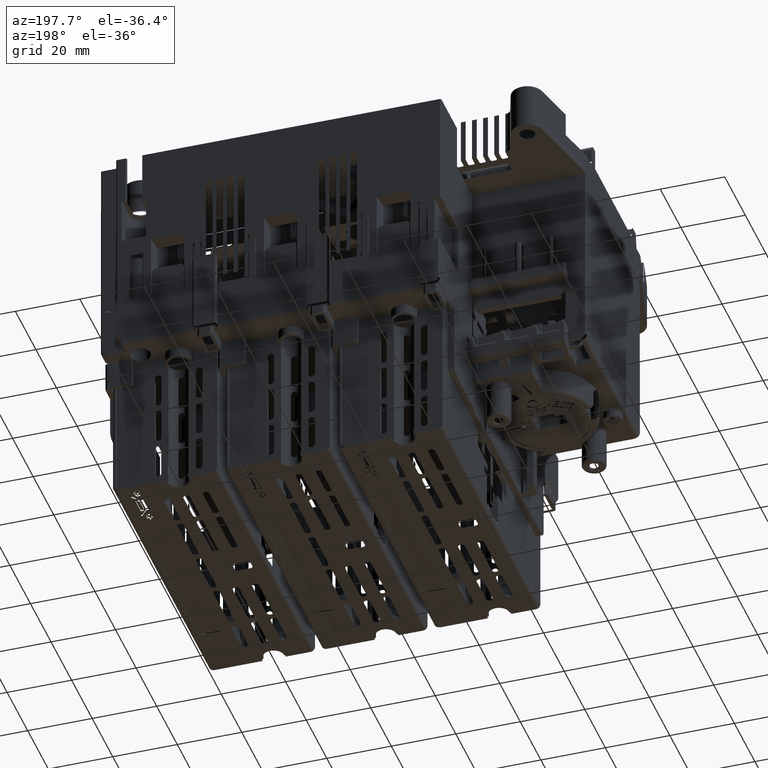
[diagram: clean part render]
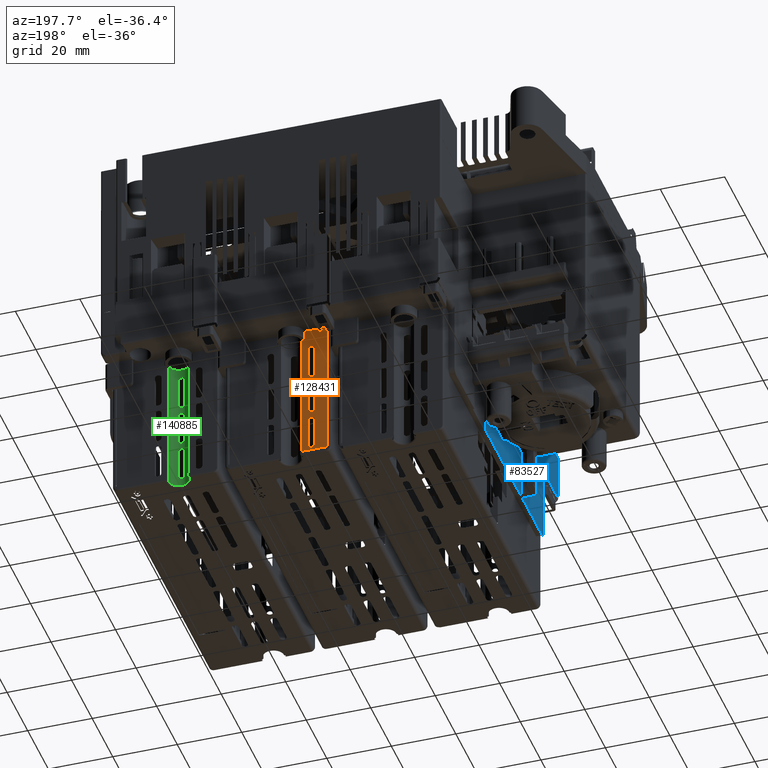
[diagram: same view with three faces highlighted in distinct colors, each labeled with its STEP entity id]
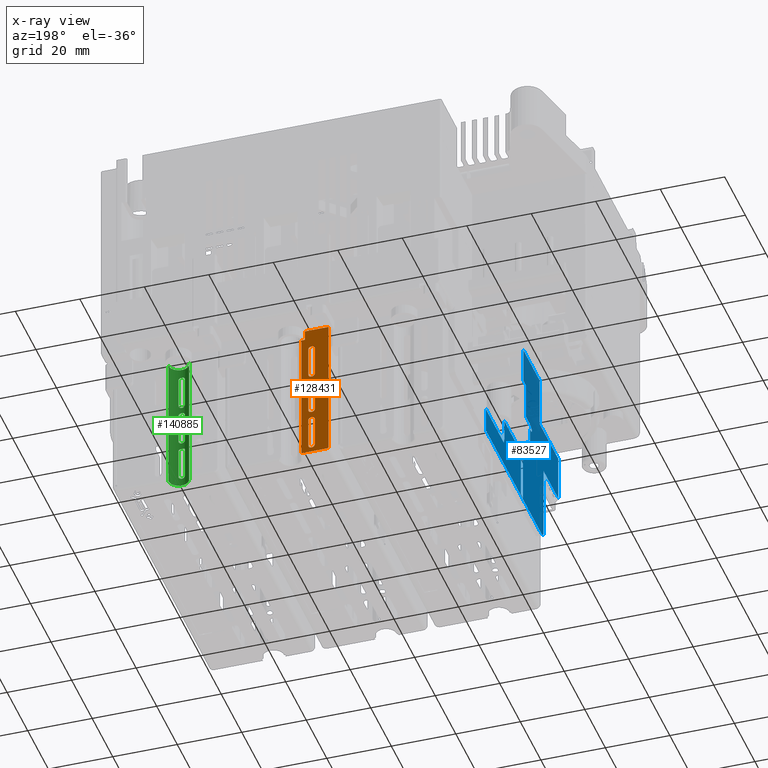
[diagram: x-ray of the same camera — body ghosted, the three highlighted faces saturated]
A machine part, auxiliary view with three faces highlighted in distinct colors.
The next image is the same camera in x-ray (body ghosted, the three faces saturated) — at least one of them is partly hidden behind the body in this view.
Their STEP definitions:

[orange] entity #128431 — the highlighted planar face has unit normal (0, 1, 0).
#122798=DIRECTION('',(1.E0,0.E0,0.E0));
#122799=VECTOR('',#122798,7.999999999987E0);
#122800=CARTESIAN_POINT('',(1.549967156548E2,4.608298711181E2,
7.999609065454E1));
#122801=LINE('',#122800,#122799);
#122802=DIRECTION('',(0.E0,0.E0,1.E0));
#122803=VECTOR('',#122802,4.139999999996E1);
#122804=CARTESIAN_POINT('',(1.629967156548E2,4.608298711181E2,
7.999609065454E1));
#122805=LINE('',#122804,#122803);
#122806=DIRECTION('',(-1.E0,0.E0,0.E0));
#122807=VECTOR('',#122806,1.149058728145E0);
#122808=CARTESIAN_POINT('',(1.629967156548E2,4.608298711181E2,
1.213960906545E2));
#122809=LINE('',#122808,#122807);
#122810=DIRECTION('',(0.E0,0.E0,1.E0));
#122811=VECTOR('',#122810,3.1E0);
#122812=CARTESIAN_POINT('',(1.618476569267E2,4.608298711181E2,
1.213960906545E2));
#122813=LINE('',#122812,#122811);
#122814=DIRECTION('',(-1.E0,0.E0,0.E0));
#122815=VECTOR('',#122814,7.350941271855E0);
#122816=CARTESIAN_POINT('',(1.618476569267E2,4.608298711181E2,
1.244960906545E2));
#122817=LINE('',#122816,#122815);
#122818=CARTESIAN_POINT('',(1.544967156548E2,4.608298711181E2,
8.049609065453E1));
#122819=CARTESIAN_POINT('',(1.544980950969E2,4.608298711181E2,
8.042646805879E1));
#122820=CARTESIAN_POINT('',(1.545231996105E2,4.608298711181E2,
8.029899881479E1));
#122821=CARTESIAN_POINT('',(1.546340490443E2,4.608298711181E2,
8.013342404407E1));
#122822=CARTESIAN_POINT('',(1.547996238150E2,4.608298711181E2,
8.002257461029E1));
#122823=CARTESIAN_POINT('',(1.549270930590E2,4.608298711181E2,
7.999747009669E1));
#122824=CARTESIAN_POINT('',(1.549967156548E2,4.608298711181E2,
7.999609065454E1));
#122826=CARTESIAN_POINT('',(1.587967156547E2,4.608298711181E2,
9.159609065408E1));
#122827=CARTESIAN_POINT('',(1.587991986506E2,4.608298711181E2,
9.172141132667E1));
#122828=CARTESIAN_POINT('',(1.588443867752E2,4.608298711181E2,
9.195085596621E1));
#122829=CARTESIAN_POINT('',(1.590439157559E2,4.608298711181E2,
9.224889055336E1));
#122830=CARTESIAN_POINT('',(1.593419503432E2,4.608298711181E2,
9.244841953421E1));
#122831=CARTESIAN_POINT('',(1.595713949825E2,4.608298711181E2,
9.249360765867E1));
#122832=CARTESIAN_POINT('',(1.596967156548E2,4.608298711181E2,
9.249609065454E1));
#122834=DIRECTION('',(1.E0,0.E0,0.E0));
#122835=VECTOR('',#122834,1.999999998716E-1);
#122836=CARTESIAN_POINT('',(1.596967156548E2,4.608298711181E2,
9.249609065454E1));
#122837=LINE('',#122836,#122835);
#122838=CARTESIAN_POINT('',(1.598967156547E2,4.608298711181E2,
9.249609065454E1));
#122839=CARTESIAN_POINT('',(1.600220363271E2,4.608298711181E2,
9.249360765867E1));
#122840=CARTESIAN_POINT('',(1.602514809663E2,4.608298711181E2,
9.244841953420E1));
#122841=CARTESIAN_POINT('',(1.605495155535E2,4.608298711181E2,
9.224889055339E1));
#122842=CARTESIAN_POINT('',(1.607490445344E2,4.608298711181E2,
9.195085596611E1));
#122843=CARTESIAN_POINT('',(1.607942326588E2,4.608298711181E2,
9.172141132689E1));
#122844=CARTESIAN_POINT('',(1.607967156547E2,4.608298711181E2,
9.159609065453E1));
#122846=DIRECTION('',(0.E0,0.E0,-1.E0));
#122847=VECTOR('',#122846,9.200000000460E0);
#122848=CARTESIAN_POINT('',(1.607967156547E2,4.608298711181E2,
9.159609065453E1));
#122849=LINE('',#122848,#122847);
#122850=CARTESIAN_POINT('',(1.607967156547E2,4.608298711181E2,
8.239609065407E1));
#122851=CARTESIAN_POINT('',(1.607942326589E2,4.608298711181E2,
8.227076998196E1));
#122852=CARTESIAN_POINT('',(1.607490445345E2,4.608298711181E2,
8.204132534310E1));
#122853=CARTESIAN_POINT('',(1.605495155536E2,4.608298711181E2,
8.174329075567E1));
#122854=CARTESIAN_POINT('',(1.602514809664E2,4.608298711181E2,
8.154376177490E1));
#122855=CARTESIAN_POINT('',(1.600220363272E2,4.608298711181E2,
8.149857365041E1));
#122856=CARTESIAN_POINT('',(1.598967156548E2,4.608298711181E2,
8.149609065454E1));
#122858=DIRECTION('',(-1.E0,0.E0,0.E0));
#122859=VECTOR('',#122858,2.000000001036E-1);
#122860=CARTESIAN_POINT('',(1.598967156548E2,4.608298711181E2,
8.149609065454E1));
#122861=LINE('',#122860,#122859);
#122862=CARTESIAN_POINT('',(1.596967156547E2,4.608298711181E2,
8.149609065454E1));
#122863=CARTESIAN_POINT('',(1.595713949823E2,4.608298711181E2,
8.149857365041E1));
#122864=CARTESIAN_POINT('',(1.593419503431E2,4.608298711181E2,
8.154376177488E1));
#122865=CARTESIAN_POINT('',(1.590439157558E2,4.608298711181E2,
8.174329075569E1));
#122866=CARTESIAN_POINT('',(1.588443867750E2,4.608298711181E2,
8.204132534298E1));
#122867=CARTESIAN_POINT('',(1.587991986506E2,4.608298711181E2,
8.227076998218E1));
#122868=CARTESIAN_POINT('',(1.587967156547E2,4.608298711181E2,
8.239609065453E1));
#122870=DIRECTION('',(0.E0,0.E0,1.E0));
#122871=VECTOR('',#122870,9.199999999544E0);
#122872=CARTESIAN_POINT('',(1.587967156547E2,4.608298711181E2,
8.239609065453E1));
#122873=LINE('',#122872,#122871);
#122874=CARTESIAN_POINT('',(1.587967156548E2,4.608298711181E2,
1.045960906545E2));
#122875=CARTESIAN_POINT('',(1.587991986507E2,4.608298711181E2,
1.047214113269E2));
#122876=CARTESIAN_POINT('',(1.588443867751E2,4.608298711181E2,
1.049508559661E2));
#122877=CARTESIAN_POINT('',(1.590439157560E2,4.608298711181E2,
1.052488905533E2));
#122878=CARTESIAN_POINT('',(1.593419503432E2,4.608298711181E2,
1.054484195342E2));
#122879=CARTESIAN_POINT('',(1.595713949824E2,4.608298711181E2,
1.054936076586E2));
#122880=CARTESIAN_POINT('',(1.596967156548E2,4.608298711181E2,
1.054960906545E2));
#122882=DIRECTION('',(1.E0,0.E0,0.E0));
#122883=VECTOR('',#122882,1.999999999781E-1);
#122884=CARTESIAN_POINT('',(1.596967156548E2,4.608298711181E2,
1.054960906545E2));
#122885=LINE('',#122884,#122883);
#122886=CARTESIAN_POINT('',(1.598967156548E2,4.608298711181E2,
1.054960906545E2));
#122887=CARTESIAN_POINT('',(1.600220363271E2,4.608298711181E2,
1.054936076586E2));
#122888=CARTESIAN_POINT('',(1.602514809664E2,4.608298711181E2,
1.054484195342E2));
#122889=CARTESIAN_POINT('',(1.605495155536E2,4.608298711181E2,
1.052488905533E2));
#122890=CARTESIAN_POINT('',(1.607490445345E2,4.608298711181E2,
1.049508559661E2));
#122891=CARTESIAN_POINT('',(1.607942326589E2,4.608298711181E2,
1.047214113269E2));
#122892=CARTESIAN_POINT('',(1.607967156548E2,4.608298711181E2,
1.045960906545E2));
#122894=DIRECTION('',(0.E0,0.E0,-1.E0));
#122895=VECTOR('',#122894,9.199999991301E0);
#122896=CARTESIAN_POINT('',(1.607967156548E2,4.608298711181E2,
1.045960906545E2));
#122897=LINE('',#122896,#122895);
#122898=CARTESIAN_POINT('',(1.607967156548E2,4.608298711181E2,
9.539609066320E1));
#122899=CARTESIAN_POINT('',(1.607942326601E2,4.608298711181E2,
9.527076999082E1));
#122900=CARTESIAN_POINT('',(1.607490445379E2,4.608298711181E2,
9.504132535117E1));
#122901=CARTESIAN_POINT('',(1.605495155599E2,4.608298711181E2,
9.474329076197E1));
#122902=CARTESIAN_POINT('',(1.602514809746E2,4.608298711181E2,
9.454376177829E1));
#122903=CARTESIAN_POINT('',(1.600220363358E2,4.608298711181E2,
9.449857365160E1));
#122904=CARTESIAN_POINT('',(1.598967156634E2,4.608298711181E2,
9.449609065453E1));
#122906=DIRECTION('',(-1.E0,0.E0,0.E0));
#122907=VECTOR('',#122906,2.000000086248E-1);
#122908=CARTESIAN_POINT('',(1.598967156634E2,4.608298711181E2,
9.449609065453E1));
#122909=LINE('',#122908,#122907);
#122910=CARTESIAN_POINT('',(1.596967156548E2,4.608298711181E2,
9.449609065453E1));
#122911=CARTESIAN_POINT('',(1.595713949825E2,4.608298711181E2,
9.449857365040E1));
#122912=CARTESIAN_POINT('',(1.593419503432E2,4.608298711181E2,
9.454376177487E1));
#122913=CARTESIAN_POINT('',(1.590439157560E2,4.608298711181E2,
9.474329075568E1));
#122914=CARTESIAN_POINT('',(1.588443867751E2,4.608298711181E2,
9.504132534296E1));
#122915=CARTESIAN_POINT('',(1.587991986507E2,4.608298711181E2,
9.527076998218E1));
#122916=CARTESIAN_POINT('',(1.587967156548E2,4.608298711181E2,
9.539609065454E1));
#122918=DIRECTION('',(0.E0,0.E0,1.E0));
#122919=VECTOR('',#122918,9.199999999950E0);
#122920=CARTESIAN_POINT('',(1.587967156548E2,4.608298711181E2,
9.539609065454E1));
#122921=LINE('',#122920,#122919);
#122922=CARTESIAN_POINT('',(1.587967156548E2,4.608298711181E2,
1.175960906545E2));
#122923=CARTESIAN_POINT('',(1.587991986507E2,4.608298711181E2,
1.177214113269E2));
#122924=CARTESIAN_POINT('',(1.588443867751E2,4.608298711181E2,
1.179508559661E2));
#122925=CARTESIAN_POINT('',(1.590439157560E2,4.608298711181E2,
1.182488905534E2));
#122926=CARTESIAN_POINT('',(1.593419503432E2,4.608298711181E2,
1.184484195342E2));
#122927=CARTESIAN_POINT('',(1.595713949824E2,4.608298711181E2,
1.184936076586E2));
#122928=CARTESIAN_POINT('',(1.596967156548E2,4.608298711181E2,
1.184960906545E2));
#122930=DIRECTION('',(1.E0,0.E0,0.E0));
#122931=VECTOR('',#122930,1.999999999989E-1);
#122932=CARTESIAN_POINT('',(1.596967156548E2,4.608298711181E2,
1.184960906545E2));
#122933=LINE('',#122932,#122931);
#122934=CARTESIAN_POINT('',(1.598967156548E2,4.608298711181E2,
1.184960906545E2));
#122935=CARTESIAN_POINT('',(1.600220363271E2,4.608298711181E2,
1.184936076586E2));
#122936=CARTESIAN_POINT('',(1.602514809664E2,4.608298711181E2,
1.184484195342E2));
#122937=CARTESIAN_POINT('',(1.605495155536E2,4.608298711181E2,
1.182488905533E2));
#122938=CARTESIAN_POINT('',(1.607490445345E2,4.608298711181E2,
1.179508559661E2));
#122939=CARTESIAN_POINT('',(1.607942326589E2,4.608298711181E2,
1.177214113269E2));
#122940=CARTESIAN_POINT('',(1.607967156548E2,4.608298711181E2,
1.175960906545E2));
#122942=DIRECTION('',(0.E0,0.E0,-1.E0));
#122943=VECTOR('',#122942,9.199999991321E0);
#122944=CARTESIAN_POINT('',(1.607967156548E2,4.608298711181E2,
1.175960906545E2));
#122945=LINE('',#122944,#122943);
#122946=CARTESIAN_POINT('',(1.607967156548E2,4.608298711181E2,
1.083960906632E2));
#122947=CARTESIAN_POINT('',(1.607942326601E2,4.608298711181E2,
1.082707699908E2));
#122948=CARTESIAN_POINT('',(1.607490445379E2,4.608298711181E2,
1.080413253511E2));
#122949=CARTESIAN_POINT('',(1.605495155599E2,4.608298711181E2,
1.077432907619E2));
#122950=CARTESIAN_POINT('',(1.602514809746E2,4.608298711181E2,
1.075437617783E2));
#122951=CARTESIAN_POINT('',(1.600220363358E2,4.608298711181E2,
1.074985736516E2));
#122952=CARTESIAN_POINT('',(1.598967156635E2,4.608298711181E2,
1.074960906545E2));
#122954=DIRECTION('',(-1.E0,0.E0,0.E0));
#122955=VECTOR('',#122954,2.000000086710E-1);
#122956=CARTESIAN_POINT('',(1.598967156635E2,4.608298711181E2,
1.074960906545E2));
#122957=LINE('',#122956,#122955);
#122958=CARTESIAN_POINT('',(1.596967156548E2,4.608298711181E2,
1.074960906545E2));
#122959=CARTESIAN_POINT('',(1.595713949824E2,4.608298711181E2,
1.074985736504E2));
#122960=CARTESIAN_POINT('',(1.593419503432E2,4.608298711181E2,
1.075437617748E2));
#122961=CARTESIAN_POINT('',(1.590439157560E2,4.608298711181E2,
1.077432907557E2));
#122962=CARTESIAN_POINT('',(1.588443867751E2,4.608298711181E2,
1.080413253429E2));
#122963=CARTESIAN_POINT('',(1.587991986507E2,4.608298711181E2,
1.082707699821E2));
#122964=CARTESIAN_POINT('',(1.587967156548E2,4.608298711181E2,
1.083960906545E2));
#122966=DIRECTION('',(0.E0,0.E0,1.E0));
#122967=VECTOR('',#122966,9.200000000037E0);
#122968=CARTESIAN_POINT('',(1.587967156548E2,4.608298711181E2,
1.083960906545E2));
#122969=LINE('',#122968,#122967);
#122970=DIRECTION('',(0.E0,0.E0,1.E0));
#122971=VECTOR('',#122970,4.399999999997E1);
#122972=CARTESIAN_POINT('',(1.544967156548E2,4.608298711181E2,
8.049609065453E1));
#122973=LINE('',#122972,#122971);
#124577=CARTESIAN_POINT('',(1.549967156548E2,4.608298711181E2,
7.999609065454E1));
#124579=VERTEX_POINT('',#124577);
#124582=CARTESIAN_POINT('',(1.629967156548E2,4.608298711181E2,
7.999609065454E1));
#124584=VERTEX_POINT('',#124582);
#124585=CARTESIAN_POINT('',(1.629967156548E2,4.608298711181E2,
1.213960906545E2));
#124586=VERTEX_POINT('',#124585);
#124587=CARTESIAN_POINT('',(1.618476569267E2,4.608298711181E2,
1.213960906545E2));
#124588=VERTEX_POINT('',#124587);
#124589=CARTESIAN_POINT('',(1.618476569267E2,4.608298711181E2,
1.244960906545E2));
#124590=VERTEX_POINT('',#124589);
#124591=CARTESIAN_POINT('',(1.544967156548E2,4.608298711181E2,
1.244960906545E2));
#124592=VERTEX_POINT('',#124591);
#124593=VERTEX_POINT('',#122818);
#124594=VERTEX_POINT('',#122826);
#124595=VERTEX_POINT('',#122832);
#124596=CARTESIAN_POINT('',(1.598967156547E2,4.608298711181E2,
9.249609065454E1));
#124597=VERTEX_POINT('',#124596);
#124598=VERTEX_POINT('',#122844);
#124599=CARTESIAN_POINT('',(1.607967156547E2,4.608298711181E2,
8.239609065407E1));
#124600=VERTEX_POINT('',#124599);
#124601=VERTEX_POINT('',#122856);
#124602=CARTESIAN_POINT('',(1.596967156547E2,4.608298711181E2,
8.149609065454E1));
#124603=VERTEX_POINT('',#124602);
#124604=VERTEX_POINT('',#122868);
#124605=VERTEX_POINT('',#122874);
#124606=VERTEX_POINT('',#122880);
#124607=CARTESIAN_POINT('',(1.598967156548E2,4.608298711181E2,
1.054960906545E2));
#124608=VERTEX_POINT('',#124607);
#124609=VERTEX_POINT('',#122892);
#124610=CARTESIAN_POINT('',(1.607967156548E2,4.608298711181E2,
9.539609066320E1));
#124611=VERTEX_POINT('',#124610);
#124612=VERTEX_POINT('',#122904);
#124613=CARTESIAN_POINT('',(1.596967156548E2,4.608298711181E2,
9.449609065453E1));
#124614=VERTEX_POINT('',#124613);
#124615=VERTEX_POINT('',#122916);
#124616=VERTEX_POINT('',#122922);
#124617=VERTEX_POINT('',#122928);
#124618=CARTESIAN_POINT('',(1.598967156548E2,4.608298711181E2,
1.184960906545E2));
#124619=VERTEX_POINT('',#124618);
#124620=VERTEX_POINT('',#122940);
#124621=CARTESIAN_POINT('',(1.607967156548E2,4.608298711181E2,
1.083960906632E2));
#124622=VERTEX_POINT('',#124621);
#124623=VERTEX_POINT('',#122952);
#124624=CARTESIAN_POINT('',(1.596967156548E2,4.608298711181E2,
1.074960906545E2));
#124625=VERTEX_POINT('',#124624);
#124626=VERTEX_POINT('',#122964);
#128357=CARTESIAN_POINT('',(1.587467156548E2,4.608298711181E2,
1.022460906545E2));
#128358=DIRECTION('',(0.E0,1.E0,0.E0));
#128359=DIRECTION('',(1.E0,0.E0,0.E0));
#128360=AXIS2_PLACEMENT_3D('',#128357,#128358,#128359);
#128361=PLANE('',#128360);
#128362=ORIENTED_EDGE('',*,*,#128347,.T.);
#128364=ORIENTED_EDGE('',*,*,#128363,.T.);
#128366=ORIENTED_EDGE('',*,*,#128365,.T.);
#128368=ORIENTED_EDGE('',*,*,#128367,.T.);
#128370=ORIENTED_EDGE('',*,*,#128369,.T.);
#128372=ORIENTED_EDGE('',*,*,#128371,.F.);
#128374=ORIENTED_EDGE('',*,*,#128373,.T.);
#128375=EDGE_LOOP('',(#128362,#128364,#128366,#128368,#128370,#128372,#128374));
#128376=FACE_OUTER_BOUND('',#128375,.F.);
#128378=ORIENTED_EDGE('',*,*,#128377,.T.);
#128380=ORIENTED_EDGE('',*,*,#128379,.T.);
#128382=ORIENTED_EDGE('',*,*,#128381,.T.);
#128384=ORIENTED_EDGE('',*,*,#128383,.T.);
#128386=ORIENTED_EDGE('',*,*,#128385,.T.);
#128388=ORIENTED_EDGE('',*,*,#128387,.T.);
#128390=ORIENTED_EDGE('',*,*,#128389,.T.);
#128392=ORIENTED_EDGE('',*,*,#128391,.T.);
#128393=EDGE_LOOP('',(#128378,#128380,#128382,#128384,#128386,#128388,#128390,
#128392));
#128394=FACE_BOUND('',#128393,.F.);
#128396=ORIENTED_EDGE('',*,*,#128395,.T.);
#128398=ORIENTED_EDGE('',*,*,#128397,.T.);
#128400=ORIENTED_EDGE('',*,*,#128399,.T.);
#128402=ORIENTED_EDGE('',*,*,#128401,.T.);
#128404=ORIENTED_EDGE('',*,*,#128403,.T.);
#128406=ORIENTED_EDGE('',*,*,#128405,.T.);
#128408=ORIENTED_EDGE('',*,*,#128407,.T.);
#128410=ORIENTED_EDGE('',*,*,#128409,.T.);
#128411=EDGE_LOOP('',(#128396,#128398,#128400,#128402,#128404,#128406,#128408,
#128410));
#128412=FACE_BOUND('',#128411,.F.);
#128414=ORIENTED_EDGE('',*,*,#128413,.T.);
#128416=ORIENTED_EDGE('',*,*,#128415,.T.);
#128418=ORIENTED_EDGE('',*,*,#128417,.T.);
#128420=ORIENTED_EDGE('',*,*,#128419,.T.);
#128422=ORIENTED_EDGE('',*,*,#128421,.T.);
#128424=ORIENTED_EDGE('',*,*,#128423,.T.);
#128426=ORIENTED_EDGE('',*,*,#128425,.T.);
#128428=ORIENTED_EDGE('',*,*,#128427,.T.);
#128429=EDGE_LOOP('',(#128414,#128416,#128418,#128420,#128422,#128424,#128426,
#128428));
#128430=FACE_BOUND('',#128429,.F.);
#128431=ADVANCED_FACE('',(#128376,#128394,#128412,#128430),#128361,.T.);
#122825=B_SPLINE_CURVE_WITH_KNOTS('',3,(#122818,#122819,#122820,#122821,#122822,
#122823,#122824),.UNSPECIFIED.,.F.,.F.,(4,1,1,1,4),(0.E0,2.5E-1,5.E-1,7.5E-1,
1.E0),.UNSPECIFIED.);
#122833=B_SPLINE_CURVE_WITH_KNOTS('',3,(#122826,#122827,#122828,#122829,#122830,
#122831,#122832),.UNSPECIFIED.,.F.,.F.,(4,1,1,1,4),(0.E0,2.5E-1,5.E-1,7.5E-1,
1.E0),.UNSPECIFIED.);
#122845=B_SPLINE_CURVE_WITH_KNOTS('',3,(#122838,#122839,#122840,#122841,#122842,
#122843,#122844),.UNSPECIFIED.,.F.,.F.,(4,1,1,1,4),(0.E0,2.5E-1,5.E-1,7.5E-1,
1.E0),.UNSPECIFIED.);
#122857=B_SPLINE_CURVE_WITH_KNOTS('',3,(#122850,#122851,#122852,#122853,#122854,
#122855,#122856),.UNSPECIFIED.,.F.,.F.,(4,1,1,1,4),(0.E0,2.5E-1,5.E-1,7.5E-1,
1.E0),.UNSPECIFIED.);
#122869=B_SPLINE_CURVE_WITH_KNOTS('',3,(#122862,#122863,#122864,#122865,#122866,
#122867,#122868),.UNSPECIFIED.,.F.,.F.,(4,1,1,1,4),(0.E0,2.5E-1,5.E-1,7.5E-1,
1.E0),.UNSPECIFIED.);
#122881=B_SPLINE_CURVE_WITH_KNOTS('',3,(#122874,#122875,#122876,#122877,#122878,
#122879,#122880),.UNSPECIFIED.,.F.,.F.,(4,1,1,1,4),(0.E0,2.5E-1,5.E-1,7.5E-1,
1.E0),.UNSPECIFIED.);
#122893=B_SPLINE_CURVE_WITH_KNOTS('',3,(#122886,#122887,#122888,#122889,#122890,
#122891,#122892),.UNSPECIFIED.,.F.,.F.,(4,1,1,1,4),(0.E0,2.5E-1,5.E-1,7.5E-1,
1.E0),.UNSPECIFIED.);
#122905=B_SPLINE_CURVE_WITH_KNOTS('',3,(#122898,#122899,#122900,#122901,#122902,
#122903,#122904),.UNSPECIFIED.,.F.,.F.,(4,1,1,1,4),(0.E0,2.5E-1,5.E-1,7.5E-1,
1.E0),.UNSPECIFIED.);
#122917=B_SPLINE_CURVE_WITH_KNOTS('',3,(#122910,#122911,#122912,#122913,#122914,
#122915,#122916),.UNSPECIFIED.,.F.,.F.,(4,1,1,1,4),(0.E0,2.5E-1,5.E-1,7.5E-1,
1.E0),.UNSPECIFIED.);
#122929=B_SPLINE_CURVE_WITH_KNOTS('',3,(#122922,#122923,#122924,#122925,#122926,
#122927,#122928),.UNSPECIFIED.,.F.,.F.,(4,1,1,1,4),(0.E0,2.5E-1,5.E-1,7.5E-1,
1.E0),.UNSPECIFIED.);
#122941=B_SPLINE_CURVE_WITH_KNOTS('',3,(#122934,#122935,#122936,#122937,#122938,
#122939,#122940),.UNSPECIFIED.,.F.,.F.,(4,1,1,1,4),(0.E0,2.5E-1,5.E-1,7.5E-1,
1.E0),.UNSPECIFIED.);
#122953=B_SPLINE_CURVE_WITH_KNOTS('',3,(#122946,#122947,#122948,#122949,#122950,
#122951,#122952),.UNSPECIFIED.,.F.,.F.,(4,1,1,1,4),(0.E0,2.5E-1,5.E-1,7.5E-1,
1.E0),.UNSPECIFIED.);
#122965=B_SPLINE_CURVE_WITH_KNOTS('',3,(#122958,#122959,#122960,#122961,#122962,
#122963,#122964),.UNSPECIFIED.,.F.,.F.,(4,1,1,1,4),(0.E0,2.5E-1,5.E-1,7.5E-1,
1.E0),.UNSPECIFIED.);
#128347=EDGE_CURVE('',#124579,#124584,#122801,.T.);
#128363=EDGE_CURVE('',#124584,#124586,#122805,.T.);
#128365=EDGE_CURVE('',#124586,#124588,#122809,.T.);
#128367=EDGE_CURVE('',#124588,#124590,#122813,.T.);
#128369=EDGE_CURVE('',#124590,#124592,#122817,.T.);
#128371=EDGE_CURVE('',#124593,#124592,#122973,.T.);
#128373=EDGE_CURVE('',#124593,#124579,#122825,.T.);
#128377=EDGE_CURVE('',#124594,#124595,#122833,.T.);
#128379=EDGE_CURVE('',#124595,#124597,#122837,.T.);
#128381=EDGE_CURVE('',#124597,#124598,#122845,.T.);
#128383=EDGE_CURVE('',#124598,#124600,#122849,.T.);
#128385=EDGE_CURVE('',#124600,#124601,#122857,.T.);
#128387=EDGE_CURVE('',#124601,#124603,#122861,.T.);
#128389=EDGE_CURVE('',#124603,#124604,#122869,.T.);
#128391=EDGE_CURVE('',#124604,#124594,#122873,.T.);
#128395=EDGE_CURVE('',#124605,#124606,#122881,.T.);
#128397=EDGE_CURVE('',#124606,#124608,#122885,.T.);
#128399=EDGE_CURVE('',#124608,#124609,#122893,.T.);
#128401=EDGE_CURVE('',#124609,#124611,#122897,.T.);
#128403=EDGE_CURVE('',#124611,#124612,#122905,.T.);
#128405=EDGE_CURVE('',#124612,#124614,#122909,.T.);
#128407=EDGE_CURVE('',#124614,#124615,#122917,.T.);
#128409=EDGE_CURVE('',#124615,#124605,#122921,.T.);
#128413=EDGE_CURVE('',#124616,#124617,#122929,.T.);
#128415=EDGE_CURVE('',#124617,#124619,#122933,.T.);
#128417=EDGE_CURVE('',#124619,#124620,#122941,.T.);
#128419=EDGE_CURVE('',#124620,#124622,#122945,.T.);
#128421=EDGE_CURVE('',#124622,#124623,#122953,.T.);
#128423=EDGE_CURVE('',#124623,#124625,#122957,.T.);
#128425=EDGE_CURVE('',#124625,#124626,#122965,.T.);
#128427=EDGE_CURVE('',#124626,#124616,#122969,.T.);

[blue] entity #83527 — the highlighted planar face has unit normal (1, 0, 0).
#57090=DIRECTION('',(3.719653416091E-5,9.999999993080E-1,6.033723299624E-7));
#57091=VECTOR('',#57090,2.449690258617E0);
#57092=CARTESIAN_POINT('',(1.164159348400E2,3.888791064274E2,1.179960790061E2));
#57093=LINE('',#57092,#57091);
#57359=CARTESIAN_POINT('',(1.164154460282E2,4.091991668315E2,1.174960999673E2));
#57361=DIRECTION('',(4.726027217284E-5,4.270596362060E-5,-9.999999979713E-1));
#57362=VECTOR('',#57361,5.999461654432E0);
#57363=CARTESIAN_POINT('',(1.164154460282E2,4.091991668315E2,1.174960999673E2));
#57364=LINE('',#57363,#57362);
#57397=DIRECTION('',(-5.199068078500E-5,-7.036489845816E-1,7.105477491304E-1));
#57398=VECTOR('',#57397,2.147553462443E0);
#57399=CARTESIAN_POINT('',(1.164158172342E2,3.883791610699E2,1.241871683388E2));
#57400=LINE('',#57399,#57398);
#57401=DIRECTION('',(-5.350818012657E-5,-9.999999985684E-1,-6.926489026053E-9));
#57402=VECTOR('',#57401,5.617363937363E-1);
#57403=CARTESIAN_POINT('',(1.164157055814E2,3.868680372567E2,1.257131076176E2));
#57404=LINE('',#57403,#57402);
#57405=CARTESIAN_POINT('',(1.164157143989E2,3.863062751381E2,1.277131076101E2));
#57406=DIRECTION('',(-1.E0,0.E0,0.E0));
#57407=DIRECTION('',(0.E0,2.572435303710E-5,-9.999999996691E-1));
#57408=AXIS2_PLACEMENT_3D('',#57405,#57406,#57407);
#57410=DIRECTION('',(-5.331191102304E-6,6.938855050817E-5,9.999999975784E-1));
#57411=VECTOR('',#57410,4.300636178278E0);
#57412=CARTESIAN_POINT('',(1.164155965616E2,3.843062620716E2,1.277124704128E2));
#57413=LINE('',#57412,#57411);
#57414=DIRECTION('',(6.605961078483E-5,-9.999999977779E-1,8.966578095350E-6));
#57415=VECTOR('',#57414,1.000181806478E0);
#57416=CARTESIAN_POINT('',(1.164155736341E2,3.843065604865E2,1.320131065807E2));
#57417=LINE('',#57416,#57415);
#57418=CARTESIAN_POINT('',(1.164156397057E2,3.833063786823E2,1.320131155489E2));
#57419=CARTESIAN_POINT('',(1.164156414894E2,3.832367391015E2,1.320144994023E2));
#57420=CARTESIAN_POINT('',(1.164156441854E2,3.831092452579E2,1.320396110318E2));
#57421=CARTESIAN_POINT('',(1.164156457134E2,3.829436824330E2,1.321504593436E2));
#57422=CARTESIAN_POINT('',(1.164156444322E2,3.828328315877E2,1.323160412242E2));
#57423=CARTESIAN_POINT('',(1.164156418732E2,3.828077319803E2,1.324434979912E2));
#57424=CARTESIAN_POINT('',(1.164156401535E2,3.828063552237E2,1.325131119363E2));
#57426=DIRECTION('',(-2.521974866322E-5,-1.088423655133E-9,9.999999996820E-1));
#57427=VECTOR('',#57426,5.029311160667E-1);
#57428=CARTESIAN_POINT('',(1.164156401535E2,3.828063552237E2,1.325131119363E2));
#57429=LINE('',#57428,#57427);
#57430=DIRECTION('',(-3.490983843846E-5,8.823524845749E-1,4.705890901262E-1));
#57431=VECTOR('',#57430,1.700017498194E0);
#57432=CARTESIAN_POINT('',(1.164156274697E2,3.828063552231E2,1.330160430522E2));
#57433=LINE('',#57432,#57431);
#57434=DIRECTION('',(-2.611393999684E-5,9.999999996590E-1,4.298248259120E-10));
#57435=VECTOR('',#57434,4.072705487691E0);
#57436=CARTESIAN_POINT('',(1.164155681224E2,3.843063698865E2,1.338160527399E2));
#57437=LINE('',#57436,#57435);
#57438=DIRECTION('',(-2.521974867067E-5,-1.088414495963E-9,9.999999996820E-1));
#57439=VECTOR('',#57438,1.148003464051E1);
#57440=CARTESIAN_POINT('',(1.164154617680E2,3.883790753728E2,1.338160527416E2));
#57441=LINE('',#57440,#57439);
#57442=DIRECTION('',(-2.611393999799E-5,9.999999996590E-1,4.298314445334E-10));
#57443=VECTOR('',#57442,2.399997437613E0);
#57444=CARTESIAN_POINT('',(1.164151722444E2,3.883790753603E2,1.452960873785E2));
#57445=LINE('',#57444,#57443);
#57446=DIRECTION('',(-2.521974867196E-5,-1.088419513480E-9,9.999999996820E-1));
#57447=VECTOR('',#57446,1.119999999761E1);
#57448=CARTESIAN_POINT('',(1.164151095710E2,3.907790727971E2,1.452960873795E2));
#57449=LINE('',#57448,#57447);
#57450=DIRECTION('',(4.216918807213E-5,-9.999999991109E-1,5.569849625683E-10));
#57451=VECTOR('',#57450,1.570323981113E1);
#57452=CARTESIAN_POINT('',(1.164148271098E2,3.907790727849E2,1.564960873736E2));
#57453=LINE('',#57452,#57451);
#57454=DIRECTION('',(2.076890302825E-5,1.085113233868E-5,-9.999999997255E-1));
#57455=VECTOR('',#57454,1.599997850488E1);
#57456=CARTESIAN_POINT('',(1.164154893027E2,3.750758329877E2,1.564960873823E2));
#57457=LINE('',#57456,#57455);
#57458=DIRECTION('',(1.817167385673E-5,-9.999999998349E-1,-9.543375698955E-8));
#57459=VECTOR('',#57458,1.799972580560E1);
#57460=CARTESIAN_POINT('',(1.164158216047E2,3.750760066056E2,1.404961088818E2));
#57461=LINE('',#57460,#57459);
#57462=DIRECTION('',(7.712507364507E-6,3.623551927093E-10,-9.999999999703E-1));
#57463=VECTOR('',#57462,2.249985109751E1);
#57464=CARTESIAN_POINT('',(1.164162675323E2,3.712791094273E2,1.259960854276E2));
#57465=LINE('',#57464,#57463);
#57466=CARTESIAN_POINT('',(1.164163075934E2,3.732791139726E2,1.034962070760E2));
#57467=DIRECTION('',(1.E0,5.145825286352E-12,5.145825286352E-12));
#57468=DIRECTION('',(5.144329406908E-12,-9.999999990818E-1,4.285437783840E-5));
#57469=AXIS2_PLACEMENT_3D('',#57466,#57467,#57468);
#57471=DIRECTION('',(-1.290125397891E-5,9.999999999168E-1,-1.293248851966E-9));
#57472=VECTOR('',#57471,5.415324472331E1);
#57473=CARTESIAN_POINT('',(1.164163244588E2,3.732790960373E2,1.014962070409E2));
#57474=LINE('',#57473,#57472);
#57475=DIRECTION('',(-7.250011873499E-5,-1.110064134467E-6,9.999999973713E-1));
#57476=VECTOR('',#57475,7.799898084958E0);
#57477=CARTESIAN_POINT('',(1.164156258141E2,4.274323407561E2,1.014962069709E2));
#57478=LINE('',#57477,#57476);
#57479=DIRECTION('',(2.611393999652E-5,-9.999999996590E-1,-4.298276273029E-10));
#57480=VECTOR('',#57479,1.771633855193E1);
#57481=CARTESIAN_POINT('',(1.164150603205E2,4.274323320977E2,1.092961050353E2));
#57482=LINE('',#57481,#57480);
#57483=DIRECTION('',(-2.521974866803E-5,-1.088463396694E-9,9.999999996820E-1));
#57484=VECTOR('',#57483,7.499823519462E-1);
#57485=CARTESIAN_POINT('',(1.164155229639E2,4.097159935518E2,1.092961050277E2));
#57486=LINE('',#57485,#57484);
#57487=DIRECTION('',(2.611393996293E-5,-9.999999996590E-1,-4.298514154644E-10));
#57488=VECTOR('',#57487,9.312980321230E-2);
#57489=CARTESIAN_POINT('',(1.164155040496E2,4.097159935510E2,1.100460873794E2));
#57490=LINE('',#57489,#57488);
#57491=CARTESIAN_POINT('',(1.164155064815E2,4.096228637478E2,1.100460873794E2));
#57492=CARTESIAN_POINT('',(1.164155055358E2,4.096056900696E2,1.101013719691E2));
#57493=CARTESIAN_POINT('',(1.164155052529E2,4.095732195151E2,1.102405405970E2));
#57494=CARTESIAN_POINT('',(1.164154869084E2,4.096026148852E2,1.105129985121E2));
#57495=CARTESIAN_POINT('',(1.164155188830E2,4.094926990698E2,1.109154415160E2));
#57496=CARTESIAN_POINT('',(1.164153710731E2,4.092649544647E2,1.112107431390E2));
#57497=CARTESIAN_POINT('',(1.164157314857E2,4.092144823512E2,1.114048630919E2));
#57498=CARTESIAN_POINT('',(1.164157295644E2,4.091994230443E2,1.114966383251E2));
#57500=DIRECTION('',(1.878143157246E-5,-9.999999998236E-1,1.081028306254E-10));
#57501=VECTOR('',#57500,1.587038791932E1);
#57502=CARTESIAN_POINT('',(1.164154460282E2,4.091991668315E2,1.174960999673E2));
#57503=LINE('',#57502,#57501);
#57504=DIRECTION('',(3.680671861040E-5,6.906579792807E-10,-9.999999993226E-1));
#57505=VECTOR('',#57504,1.550001260880E1);
#57506=CARTESIAN_POINT('',(1.164157440969E2,3.933287789150E2,1.174960999691E2));
#57507=LINE('',#57506,#57505);
#57508=DIRECTION('',(1.633066586459E-6,-9.999999999987E-1,6.023004365987E-10));
#57509=VECTOR('',#57508,1.999994085330E0);
#57510=CARTESIAN_POINT('',(1.164163146015E2,3.933287789257E2,1.019960873708E2));
#57511=LINE('',#57510,#57509);
#57512=DIRECTION('',(-1.824423181003E-5,7.402458083384E-7,9.999999998333E-1));
#57513=VECTOR('',#57512,1.599999311485E1);
#57514=CARTESIAN_POINT('',(1.164163178676E2,3.913287848404E2,1.019960873720E2));
#57515=LINE('',#57514,#57513);
#57516=CARTESIAN_POINT('',(1.164159348400E2,3.888791064274E2,1.179960790061E2));
#57517=CARTESIAN_POINT('',(1.164159366224E2,3.888095085834E2,1.179974696607E2));
#57518=CARTESIAN_POINT('',(1.164158102405E2,3.886820043899E2,1.180225960065E2));
#57519=CARTESIAN_POINT('',(1.164158696934E2,3.885164888834E2,1.181334535497E2));
#57520=CARTESIAN_POINT('',(1.164158303230E2,3.884056631910E2,1.182990184201E2));
#57521=CARTESIAN_POINT('',(1.164158907169E2,3.883805677917E2,1.184264695173E2));
#57522=CARTESIAN_POINT('',(1.164158889944E2,3.883791614401E2,1.184962262623E2));
#57602=DIRECTION('',(1.260955515537E-5,6.506056701400E-8,-9.999999999205E-1));
#57603=VECTOR('',#57602,5.690942076937E0);
#57604=CARTESIAN_POINT('',(1.164158172342E2,3.883791610699E2,1.241871683388E2));
#57605=LINE('',#57604,#57603);
#67690=DIRECTION('',(-3.359400329339E-5,1.698728587905E-5,9.999999992914E-1));
#67691=VECTOR('',#67690,1.450004628235E1);
#67692=CARTESIAN_POINT('',(1.164166358045E2,3.570760344866E2,1.259960608920E2));
#67693=LINE('',#67692,#67691);
#69339=DIRECTION('',(2.592904321674E-5,-9.999999996624E-1,-1.727489402606E-6));
#69340=VECTOR('',#69339,1.420307494550E1);
#69341=CARTESIAN_POINT('',(1.164162675323E2,3.712791094273E2,1.259960854276E2));
#69342=LINE('',#69341,#69340);
#79226=CARTESIAN_POINT('',(1.164167154905E2,3.570760407981E2,1.259960609574E2));
#79228=VERTEX_POINT('',#79226);
#80731=CARTESIAN_POINT('',(1.164154893027E2,3.750758329877E2,1.564960873823E2));
#80732=VERTEX_POINT('',#80731);
#80794=CARTESIAN_POINT('',(1.164156755239E2,3.863063008638E2,1.257131076138E2));
#80796=VERTEX_POINT('',#80794);
#80815=CARTESIAN_POINT('',(1.164155736341E2,3.843065604865E2,1.320131065807E2));
#80817=VERTEX_POINT('',#80815);
#80881=CARTESIAN_POINT('',(1.164160870287E2,4.091997766908E2,1.114960755643E2));
#80882=VERTEX_POINT('',#80881);
#80893=CARTESIAN_POINT('',(1.164156258141E2,4.274323407561E2,1.014962069709E2));
#80894=VERTEX_POINT('',#80893);
#80948=VERTEX_POINT('',#57359);
#80957=CARTESIAN_POINT('',(1.164163146015E2,3.933287789257E2,1.019960873708E2));
#80959=VERTEX_POINT('',#80957);
#80970=CARTESIAN_POINT('',(1.164158172342E2,3.883791610699E2,1.241871683388E2));
#80971=CARTESIAN_POINT('',(1.164157055814E2,3.868680372567E2,1.257131076176E2));
#80972=VERTEX_POINT('',#80970);
#80973=VERTEX_POINT('',#80971);
#80974=CARTESIAN_POINT('',(1.164156397057E2,3.833063786823E2,1.320131155489E2));
#80975=VERTEX_POINT('',#80974);
#80976=VERTEX_POINT('',#57424);
#80977=CARTESIAN_POINT('',(1.164156274697E2,3.828063552231E2,1.330160430522E2));
#80978=VERTEX_POINT('',#80977);
#80979=CARTESIAN_POINT('',(1.164155681224E2,3.843063698865E2,1.338160527399E2));
#80980=VERTEX_POINT('',#80979);
#80981=CARTESIAN_POINT('',(1.164154617680E2,3.883790753728E2,1.338160527416E2));
#80982=VERTEX_POINT('',#80981);
#80983=CARTESIAN_POINT('',(1.164151722444E2,3.883790753603E2,1.452960873785E2));
#80984=VERTEX_POINT('',#80983);
#80985=CARTESIAN_POINT('',(1.164151095710E2,3.907790727971E2,1.452960873795E2));
#80986=VERTEX_POINT('',#80985);
#80987=CARTESIAN_POINT('',(1.164148271098E2,3.907790727849E2,1.564960873736E2));
#80988=VERTEX_POINT('',#80987);
#80989=CARTESIAN_POINT('',(1.164150603205E2,4.274323320977E2,1.092961050353E2));
#80990=VERTEX_POINT('',#80989);
#80991=CARTESIAN_POINT('',(1.164155229639E2,4.097159935518E2,1.092961050277E2));
#80992=VERTEX_POINT('',#80991);
#80993=CARTESIAN_POINT('',(1.164155040496E2,4.097159935510E2,1.100460873794E2));
#80994=VERTEX_POINT('',#80993);
#80995=CARTESIAN_POINT('',(1.164155064815E2,4.096228637478E2,1.100460873794E2));
#80996=VERTEX_POINT('',#80995);
#80997=CARTESIAN_POINT('',(1.164157440969E2,3.933287789150E2,1.174960999691E2));
#80998=VERTEX_POINT('',#80997);
#80999=VERTEX_POINT('',#57516);
#81000=VERTEX_POINT('',#57522);
#82480=CARTESIAN_POINT('',(1.164163544406E2,3.712791139726E2,1.259961349354E2));
#82481=VERTEX_POINT('',#82480);
#82486=CARTESIAN_POINT('',(1.164164410626E2,3.712791094354E2,1.034962343308E2));
#82487=VERTEX_POINT('',#82486);
#82491=CARTESIAN_POINT('',(1.164163244588E2,3.732790960373E2,1.014962070409E2));
#82493=VERTEX_POINT('',#82491);
#82864=CARTESIAN_POINT('',(1.164161486899E2,3.570762808030E2,1.404961071641E2));
#82865=VERTEX_POINT('',#82864);
#82866=CARTESIAN_POINT('',(1.164158216047E2,3.750760066056E2,1.404961088818E2));
#82867=VERTEX_POINT('',#82866);
#82984=CARTESIAN_POINT('',(1.164157143989E2,3.843062761147E2,1.277111311749E2));
#82985=VERTEX_POINT('',#82984);
#83073=CARTESIAN_POINT('',(1.164163178676E2,3.913287848404E2,1.019960873720E2));
#83074=VERTEX_POINT('',#83073);
#83079=CARTESIAN_POINT('',(1.164160259600E2,3.913287966843E2,1.179960804841E2));
#83080=VERTEX_POINT('',#83079);
#83456=CARTESIAN_POINT('',(1.164154821312E2,3.922541554965E2,1.289961472208E2));
#83457=DIRECTION('',(9.999999993410E-1,2.611393997738E-5,2.521974869149E-5));
#83458=DIRECTION('',(2.611393999653E-5,-9.999999996590E-1,-4.298277025909E-10));
#83459=AXIS2_PLACEMENT_3D('',#83456,#83457,#83458);
#83460=PLANE('',#83459);
#83462=ORIENTED_EDGE('',*,*,#83461,.T.);
#83464=ORIENTED_EDGE('',*,*,#83463,.T.);
#83466=ORIENTED_EDGE('',*,*,#83465,.T.);
#83468=ORIENTED_EDGE('',*,*,#83467,.T.);
#83470=ORIENTED_EDGE('',*,*,#83469,.T.);
#83472=ORIENTED_EDGE('',*,*,#83471,.T.);
#83474=ORIENTED_EDGE('',*,*,#83473,.T.);
#83476=ORIENTED_EDGE('',*,*,#83475,.T.);
#83478=ORIENTED_EDGE('',*,*,#83477,.T.);
#83480=ORIENTED_EDGE('',*,*,#83479,.T.);
#83482=ORIENTED_EDGE('',*,*,#83481,.T.);
#83484=ORIENTED_EDGE('',*,*,#83483,.T.);
#83486=ORIENTED_EDGE('',*,*,#83485,.T.);
#83488=ORIENTED_EDGE('',*,*,#83487,.T.);
#83490=ORIENTED_EDGE('',*,*,#83489,.T.);
#83492=ORIENTED_EDGE('',*,*,#83491,.F.);
#83494=ORIENTED_EDGE('',*,*,#83493,.F.);
#83496=ORIENTED_EDGE('',*,*,#83495,.T.);
#83498=ORIENTED_EDGE('',*,*,#83497,.T.);
#83500=ORIENTED_EDGE('',*,*,#83499,.T.);
#83502=ORIENTED_EDGE('',*,*,#83501,.T.);
#83504=ORIENTED_EDGE('',*,*,#83503,.T.);
#83506=ORIENTED_EDGE('',*,*,#83505,.T.);
#83508=ORIENTED_EDGE('',*,*,#83507,.T.);
#83510=ORIENTED_EDGE('',*,*,#83509,.T.);
#83511=ORIENTED_EDGE('',*,*,#83434,.F.);
#83513=ORIENTED_EDGE('',*,*,#83512,.T.);
#83515=ORIENTED_EDGE('',*,*,#83514,.T.);
#83517=ORIENTED_EDGE('',*,*,#83516,.T.);
#83519=ORIENTED_EDGE('',*,*,#83518,.T.);
#83520=ORIENTED_EDGE('',*,*,#83265,.F.);
#83522=ORIENTED_EDGE('',*,*,#83521,.T.);
#83524=ORIENTED_EDGE('',*,*,#83523,.F.);
#83525=EDGE_LOOP('',(#83462,#83464,#83466,#83468,#83470,#83472,#83474,#83476,
#83478,#83480,#83482,#83484,#83486,#83488,#83490,#83492,#83494,#83496,#83498,
#83500,#83502,#83504,#83506,#83508,#83510,#83511,#83513,#83515,#83517,#83519,
#83520,#83522,#83524));
#83526=FACE_OUTER_BOUND('',#83525,.F.);
#83527=ADVANCED_FACE('',(#83526),#83460,.F.);
#57409=CIRCLE('',#57408,1.999999999996E0);
#57425=B_SPLINE_CURVE_WITH_KNOTS('',3,(#57418,#57419,#57420,#57421,#57422,
#57423,#57424),.UNSPECIFIED.,.F.,.F.,(4,1,1,1,4),(0.E0,2.5E-1,5.E-1,7.5E-1,
1.E0),.UNSPECIFIED.);
#57470=CIRCLE('',#57469,1.999999999998E0);
#57499=B_SPLINE_CURVE_WITH_KNOTS('',3,(#57491,#57492,#57493,#57494,#57495,
#57496,#57497,#57498),.UNSPECIFIED.,.F.,.F.,(4,1,1,1,1,4),(0.E0,2.E-1,4.E-1,
6.E-1,8.E-1,1.E0),.UNSPECIFIED.);
#57523=B_SPLINE_CURVE_WITH_KNOTS('',3,(#57516,#57517,#57518,#57519,#57520,
#57521,#57522),.UNSPECIFIED.,.F.,.F.,(4,1,1,1,4),(0.E0,2.5E-1,5.E-1,7.5E-1,
1.E0),.UNSPECIFIED.);
#83265=EDGE_CURVE('',#80999,#83080,#57093,.T.);
#83434=EDGE_CURVE('',#80948,#80882,#57364,.T.);
#83461=EDGE_CURVE('',#80972,#80973,#57400,.T.);
#83463=EDGE_CURVE('',#80973,#80796,#57404,.T.);
#83465=EDGE_CURVE('',#80796,#82985,#57409,.T.);
#83467=EDGE_CURVE('',#82985,#80817,#57413,.T.);
#83469=EDGE_CURVE('',#80817,#80975,#57417,.T.);
#83471=EDGE_CURVE('',#80975,#80976,#57425,.T.);
#83473=EDGE_CURVE('',#80976,#80978,#57429,.T.);
#83475=EDGE_CURVE('',#80978,#80980,#57433,.T.);
#83477=EDGE_CURVE('',#80980,#80982,#57437,.T.);
#83479=EDGE_CURVE('',#80982,#80984,#57441,.T.);
#83481=EDGE_CURVE('',#80984,#80986,#57445,.T.);
#83483=EDGE_CURVE('',#80986,#80988,#57449,.T.);
#83485=EDGE_CURVE('',#80988,#80732,#57453,.T.);
#83487=EDGE_CURVE('',#80732,#82867,#57457,.T.);
#83489=EDGE_CURVE('',#82867,#82865,#57461,.T.);
#83491=EDGE_CURVE('',#79228,#82865,#67693,.T.);
#83493=EDGE_CURVE('',#82481,#79228,#69342,.T.);
#83495=EDGE_CURVE('',#82481,#82487,#57465,.T.);
#83497=EDGE_CURVE('',#82487,#82493,#57470,.T.);
#83499=EDGE_CURVE('',#82493,#80894,#57474,.T.);
#83501=EDGE_CURVE('',#80894,#80990,#57478,.T.);
#83503=EDGE_CURVE('',#80990,#80992,#57482,.T.);
#83505=EDGE_CURVE('',#80992,#80994,#57486,.T.);
#83507=EDGE_CURVE('',#80994,#80996,#57490,.T.);
#83509=EDGE_CURVE('',#80996,#80882,#57499,.T.);
#83512=EDGE_CURVE('',#80948,#80998,#57503,.T.);
#83514=EDGE_CURVE('',#80998,#80959,#57507,.T.);
#83516=EDGE_CURVE('',#80959,#83074,#57511,.T.);
#83518=EDGE_CURVE('',#83074,#83080,#57515,.T.);
#83521=EDGE_CURVE('',#80999,#81000,#57523,.T.);
#83523=EDGE_CURVE('',#80972,#81000,#57605,.T.);

[green] entity #140885 — the highlighted cylindrical surface (edge-blend (fillet) strip) has radius 3.15 mm, axis along (0, 0, -1).
#135126=CARTESIAN_POINT('',(2.010467156546E2,4.607406068209E2,
7.899609065455E1));
#135127=DIRECTION('',(4.944291183520E-12,3.979189300851E-12,-1.E0));
#135128=DIRECTION('',(1.E0,3.763792240836E-9,4.944475164399E-12));
#135129=AXIS2_PLACEMENT_3D('',#135126,#135127,#135128);
#135131=DIRECTION('',(-1.876905339745E-14,6.703233356233E-14,-1.E0));
#135132=VECTOR('',#135131,4.239999999996E1);
#135133=CARTESIAN_POINT('',(1.978967156546E2,4.607406067735E2,
1.213960906545E2));
#135134=LINE('',#135133,#135132);
#135135=DIRECTION('',(-1.876905339746E-14,1.398254258711E-10,1.E0));
#135136=VECTOR('',#135135,4.239999999995E1);
#135137=CARTESIAN_POINT('',(2.041967156546E2,4.607406068268E2,
7.899609065455E1));
#135138=LINE('',#135137,#135136);
#135139=CARTESIAN_POINT('',(2.010467156546E2,4.607406068209E2,
1.213960906545E2));
#135140=DIRECTION('',(0.E0,0.E0,-1.E0));
#135141=DIRECTION('',(1.E0,3.763792240838E-9,0.E0));
#135142=AXIS2_PLACEMENT_3D('',#135139,#135140,#135141);
#135144=DIRECTION('',(0.E0,0.E0,1.E0));
#135145=VECTOR('',#135144,9.199999992300E0);
#135146=CARTESIAN_POINT('',(2.000485195155E2,4.577529481276E2,
1.083960906635E2));
#135147=LINE('',#135146,#135145);
#135148=CARTESIAN_POINT('',(2.000485195155E2,4.577529481276E2,
1.175960906558E2));
#135149=CARTESIAN_POINT('',(2.000511008491E2,4.577520856873E2,
1.177206161194E2));
#135150=CARTESIAN_POINT('',(2.000938088154E2,4.577370239517E2,
1.179485181802E2));
#135151=CARTESIAN_POINT('',(2.002996805969E2,4.576770709950E2,
1.182476057284E2));
#135152=CARTESIAN_POINT('',(2.005742303395E2,4.576208812694E2,
1.184418845649E2));
#135153=CARTESIAN_POINT('',(2.008138557798E2,4.575964168919E2,
1.184908537650E2));
#135154=CARTESIAN_POINT('',(2.009466572035E2,4.575921963797E2,
1.184960906549E2));
#135156=CARTESIAN_POINT('',(2.010467156546E2,4.607406068209E2,
1.184960906549E2));
#135157=DIRECTION('',(0.E0,0.E0,1.E0));
#135158=DIRECTION('',(-3.176458765097E-2,-9.994953781641E-1,0.E0));
#135159=AXIS2_PLACEMENT_3D('',#135156,#135157,#135158);
#135161=CARTESIAN_POINT('',(2.011497538278E2,4.575922924886E2,
1.184960906549E2));
#135162=CARTESIAN_POINT('',(2.012785196580E2,4.575965067425E2,
1.184923608182E2));
#135163=CARTESIAN_POINT('',(2.015127357655E2,4.576197473790E2,
1.184458068270E2));
#135164=CARTESIAN_POINT('',(2.017981920211E2,4.576780078520E2,
1.182472936699E2));
#135165=CARTESIAN_POINT('',(2.019996231857E2,4.577371280734E2,
1.179542959923E2));
#135166=CARTESIAN_POINT('',(2.020443231001E2,4.577527491665E2,
1.177229890954E2));
#135167=CARTESIAN_POINT('',(2.020478679960E2,4.577539374402E2,
1.175960906549E2));
#135169=DIRECTION('',(0.E0,0.E0,-1.E0));
#135170=VECTOR('',#135169,9.199999991400E0);
#135171=CARTESIAN_POINT('',(2.020478679960E2,4.577539374402E2,
1.175960906549E2));
#135172=LINE('',#135171,#135170);
#135173=CARTESIAN_POINT('',(2.020478679960E2,4.577539374402E2,
1.083960906635E2));
#135174=CARTESIAN_POINT('',(2.020452989167E2,4.577530762670E2,
1.082716150319E2));
#135175=CARTESIAN_POINT('',(2.020026153304E2,4.577379752947E2,
1.080437808274E2));
#135176=CARTESIAN_POINT('',(2.017967866467E2,4.576778114182E2,
1.077446549137E2));
#135177=CARTESIAN_POINT('',(2.015222135582E2,4.576213364208E2,
1.075503317409E2));
#135178=CARTESIAN_POINT('',(2.012825720699E2,4.575966393700E2,
1.075013387864E2));
#135179=CARTESIAN_POINT('',(2.011497538278E2,4.575922924886E2,
1.074960906549E2));
#135181=CARTESIAN_POINT('',(2.010467156546E2,4.607406068209E2,
1.074960906549E2));
#135182=DIRECTION('',(0.E0,0.E0,-1.E0));
#135183=DIRECTION('',(3.271053117443E-2,-9.994648673917E-1,0.E0));
#135184=AXIS2_PLACEMENT_3D('',#135181,#135182,#135183);
#135186=CARTESIAN_POINT('',(2.009466572035E2,4.575921963797E2,
1.074960906549E2));
#135187=CARTESIAN_POINT('',(2.008178831425E2,4.575962888998E2,
1.074998165756E2));
#135188=CARTESIAN_POINT('',(2.005836510037E2,4.576193098014E2,
1.075463595792E2));
#135189=CARTESIAN_POINT('',(2.002982369508E2,4.576772763253E2,
1.077448488006E2));
#135190=CARTESIAN_POINT('',(2.000967894258E2,4.577361838947E2,
1.080378090491E2));
#135191=CARTESIAN_POINT('',(2.000520734857E2,4.577517607231E2,
1.082691596667E2));
#135192=CARTESIAN_POINT('',(2.000485195155E2,4.577529481276E2,
1.083960906635E2));
#135194=DIRECTION('',(0.E0,0.E0,1.E0));
#135195=VECTOR('',#135194,9.200000009640E0);
#135196=CARTESIAN_POINT('',(2.000485195155E2,4.577529481276E2,
9.539609064566E1));
#135197=LINE('',#135196,#135195);
#135198=CARTESIAN_POINT('',(2.000485195155E2,4.577529481276E2,
1.045960906553E2));
#135199=CARTESIAN_POINT('',(2.000511008491E2,4.577520856873E2,
1.047206161192E2));
#135200=CARTESIAN_POINT('',(2.000938088155E2,4.577370239516E2,
1.049485181804E2));
#135201=CARTESIAN_POINT('',(2.002996805970E2,4.576770709949E2,
1.052476057285E2));
#135202=CARTESIAN_POINT('',(2.005742303398E2,4.576208812693E2,
1.054418845650E2));
#135203=CARTESIAN_POINT('',(2.008138557799E2,4.575964168919E2,
1.054908537651E2));
#135204=CARTESIAN_POINT('',(2.009466572035E2,4.575921963797E2,
1.054960906549E2));
#135206=CARTESIAN_POINT('',(2.010467156546E2,4.607406068209E2,
1.054960906549E2));
#135207=DIRECTION('',(0.E0,0.E0,1.E0));
#135208=DIRECTION('',(-3.176458765097E-2,-9.994953781641E-1,0.E0));
#135209=AXIS2_PLACEMENT_3D('',#135206,#135207,#135208);
#135211=CARTESIAN_POINT('',(2.011497538278E2,4.575922924886E2,
1.054960906549E2));
#135212=CARTESIAN_POINT('',(2.012785196580E2,4.575965067425E2,
1.054923608183E2));
#135213=CARTESIAN_POINT('',(2.015127357654E2,4.576197473790E2,
1.054458068271E2));
#135214=CARTESIAN_POINT('',(2.017981920212E2,4.576780078520E2,
1.052472936699E2));
#135215=CARTESIAN_POINT('',(2.019996231856E2,4.577371280734E2,
1.049542959925E2));
#135216=CARTESIAN_POINT('',(2.020443231E2,4.577527491665E2,1.047229890955E2));
#135217=CARTESIAN_POINT('',(2.020478679960E2,4.577539374402E2,
1.045960906549E2));
#135219=DIRECTION('',(0.E0,0.E0,-1.E0));
#135220=VECTOR('',#135219,9.199999991382E0);
#135221=CARTESIAN_POINT('',(2.020478679960E2,4.577539374402E2,
1.045960906549E2));
#135222=LINE('',#135221,#135220);
#135223=CARTESIAN_POINT('',(2.020478679960E2,4.577539374402E2,
9.539609066353E1));
#135224=CARTESIAN_POINT('',(2.020452989166E2,4.577530762670E2,
9.527161503168E1));
#135225=CARTESIAN_POINT('',(2.020026153301E2,4.577379752946E2,
9.504378082669E1));
#135226=CARTESIAN_POINT('',(2.017967866469E2,4.576778114183E2,
9.474465491371E1));
#135227=CARTESIAN_POINT('',(2.015222135563E2,4.576213364204E2,
9.455033174008E1));
#135228=CARTESIAN_POINT('',(2.012825720691E2,4.575966393700E2,
9.450133878608E1));
#135229=CARTESIAN_POINT('',(2.011497538278E2,4.575922924886E2,
9.449609065488E1));
#135231=CARTESIAN_POINT('',(2.010467156546E2,4.607406068209E2,
9.449609065488E1));
#135232=DIRECTION('',(0.E0,0.E0,-1.E0));
#135233=DIRECTION('',(3.271053117443E-2,-9.994648673917E-1,0.E0));
#135234=AXIS2_PLACEMENT_3D('',#135231,#135232,#135233);
#135236=CARTESIAN_POINT('',(2.009466572035E2,4.575921963797E2,
9.449609065488E1));
#135237=CARTESIAN_POINT('',(2.008178831438E2,4.575962888998E2,
9.449981657559E1));
#135238=CARTESIAN_POINT('',(2.005836510068E2,4.576193098011E2,
9.454635957917E1));
#135239=CARTESIAN_POINT('',(2.002982369570E2,4.576772763237E2,
9.474484879292E1));
#135240=CARTESIAN_POINT('',(2.000967894270E2,4.577361838942E2,
9.503780904924E1));
#135241=CARTESIAN_POINT('',(2.000520734861E2,4.577517607229E2,
9.526915965609E1));
#135242=CARTESIAN_POINT('',(2.000485195155E2,4.577529481276E2,
9.539609064566E1));
#135244=DIRECTION('',(0.E0,0.E0,1.E0));
#135245=VECTOR('',#135244,9.199999986630E0);
#135246=CARTESIAN_POINT('',(2.000485195155E2,4.577529481276E2,
8.239609065490E1));
#135247=LINE('',#135246,#135245);
#135248=CARTESIAN_POINT('',(2.000485195155E2,4.577529481276E2,
9.159609064153E1));
#135249=CARTESIAN_POINT('',(2.000511008486E2,4.577520856875E2,
9.172061611116E1));
#135250=CARTESIAN_POINT('',(2.000938088145E2,4.577370239520E2,
9.194851818107E1));
#135251=CARTESIAN_POINT('',(2.002996805956E2,4.576770709952E2,
9.224760572688E1));
#135252=CARTESIAN_POINT('',(2.005742303430E2,4.576208812688E2,
9.244188456669E1));
#135253=CARTESIAN_POINT('',(2.008138557813E2,4.575964168919E2,
9.249085376580E1));
#135254=CARTESIAN_POINT('',(2.009466572035E2,4.575921963797E2,
9.249609065489E1));
#135256=CARTESIAN_POINT('',(2.010467156546E2,4.607406068209E2,
9.249609065489E1));
#135257=DIRECTION('',(0.E0,0.E0,1.E0));
#135258=DIRECTION('',(-3.176458765097E-2,-9.994953781641E-1,0.E0));
#135259=AXIS2_PLACEMENT_3D('',#135256,#135257,#135258);
#135261=CARTESIAN_POINT('',(2.011497538278E2,4.575922924886E2,
9.249609065489E1));
#135262=CARTESIAN_POINT('',(2.012785196578E2,4.575965067425E2,
9.249236081829E1));
#135263=CARTESIAN_POINT('',(2.015127357650E2,4.576197473789E2,
9.244580682720E1));
#135264=CARTESIAN_POINT('',(2.017981920211E2,4.576780078519E2,
9.224729367002E1));
#135265=CARTESIAN_POINT('',(2.019996231855E2,4.577371280733E2,
9.195429599286E1));
#135266=CARTESIAN_POINT('',(2.020443231E2,4.577527491665E2,9.172298909559E1));
#135267=CARTESIAN_POINT('',(2.020478679960E2,4.577539374402E2,
9.159609065488E1));
#135269=DIRECTION('',(0.E0,0.E0,-1.E0));
#135270=VECTOR('',#135269,9.199999999968E0);
#135271=CARTESIAN_POINT('',(2.020478679960E2,4.577539374402E2,
9.159609065488E1));
#135272=LINE('',#135271,#135270);
#135273=CARTESIAN_POINT('',(2.020478679960E2,4.577539374402E2,
8.239609065491E1));
#135274=CARTESIAN_POINT('',(2.020452989171E2,4.577530762671E2,
8.227161502945E1));
#135275=CARTESIAN_POINT('',(2.020026153314E2,4.577379752950E2,
8.204378083361E1));
#135276=CARTESIAN_POINT('',(2.017967866501E2,4.576778114191E2,
8.174465491600E1));
#135277=CARTESIAN_POINT('',(2.015222135605E2,4.576213364211E2,
8.155033174180E1));
#135278=CARTESIAN_POINT('',(2.012825720709E2,4.575966393701E2,
8.150133878659E1));
#135279=CARTESIAN_POINT('',(2.011497538278E2,4.575922924886E2,
8.149609065489E1));
#135281=CARTESIAN_POINT('',(2.010467156546E2,4.607406068209E2,
8.149609065489E1));
#135282=DIRECTION('',(0.E0,0.E0,-1.E0));
#135283=DIRECTION('',(3.271053117443E-2,-9.994648673917E-1,0.E0));
#135284=AXIS2_PLACEMENT_3D('',#135281,#135282,#135283);
#135286=CARTESIAN_POINT('',(2.009466572035E2,4.575921963797E2,
8.149609065489E1));
#135287=CARTESIAN_POINT('',(2.008178831428E2,4.575962888998E2,
8.149981657573E1));
#135288=CARTESIAN_POINT('',(2.005836510045E2,4.576193098014E2,
8.154635957949E1));
#135289=CARTESIAN_POINT('',(2.002982369538E2,4.576772763245E2,
8.174484879696E1));
#135290=CARTESIAN_POINT('',(2.000967894261E2,4.577361838945E2,
8.203780904954E1));
#135291=CARTESIAN_POINT('',(2.000520734859E2,4.577517607230E2,
8.226915966176E1));
#135292=CARTESIAN_POINT('',(2.000485195155E2,4.577529481276E2,
8.239609065490E1));
#136687=CARTESIAN_POINT('',(1.978967156546E2,4.607406067735E2,
1.213960906545E2));
#136688=CARTESIAN_POINT('',(1.978967156546E2,4.607406067735E2,
7.899609065454E1));
#136689=VERTEX_POINT('',#136687);
#136690=VERTEX_POINT('',#136688);
#136691=CARTESIAN_POINT('',(2.041967156546E2,4.607406068268E2,
7.899609065455E1));
#136692=CARTESIAN_POINT('',(2.041967156546E2,4.607406068328E2,
1.213960906545E2));
#136693=VERTEX_POINT('',#136691);
#136694=VERTEX_POINT('',#136692);
#136695=CARTESIAN_POINT('',(2.000485195155E2,4.577529481276E2,
1.083960906635E2));
#136696=CARTESIAN_POINT('',(2.000485195155E2,4.577529481276E2,
1.175960906558E2));
#136697=VERTEX_POINT('',#136695);
#136698=VERTEX_POINT('',#136696);
#136699=VERTEX_POINT('',#135154);
#136700=CARTESIAN_POINT('',(2.011497538278E2,4.575922924886E2,
1.184960906549E2));
#136701=VERTEX_POINT('',#136700);
#136702=VERTEX_POINT('',#135167);
#136703=CARTESIAN_POINT('',(2.020478679960E2,4.577539374402E2,
1.083960906635E2));
#136704=VERTEX_POINT('',#136703);
#136705=VERTEX_POINT('',#135179);
#136706=CARTESIAN_POINT('',(2.009466572035E2,4.575921963797E2,
1.074960906549E2));
#136707=VERTEX_POINT('',#136706);
#136708=CARTESIAN_POINT('',(2.000485195155E2,4.577529481276E2,
9.539609064566E1));
#136709=CARTESIAN_POINT('',(2.000485195155E2,4.577529481276E2,
1.045960906553E2));
#136710=VERTEX_POINT('',#136708);
#136711=VERTEX_POINT('',#136709);
#136712=VERTEX_POINT('',#135204);
#136713=CARTESIAN_POINT('',(2.011497538278E2,4.575922924886E2,
1.054960906549E2));
#136714=VERTEX_POINT('',#136713);
#136715=VERTEX_POINT('',#135217);
#136716=CARTESIAN_POINT('',(2.020478679960E2,4.577539374402E2,
9.539609066353E1));
#136717=VERTEX_POINT('',#136716);
#136718=VERTEX_POINT('',#135229);
#136719=CARTESIAN_POINT('',(2.009466572035E2,4.575921963797E2,
9.449609065488E1));
#136720=VERTEX_POINT('',#136719);
#136721=CARTESIAN_POINT('',(2.000485195155E2,4.577529481276E2,
8.239609065490E1));
#136722=CARTESIAN_POINT('',(2.000485195155E2,4.577529481276E2,
9.159609064153E1));
#136723=VERTEX_POINT('',#136721);
#136724=VERTEX_POINT('',#136722);
#136725=VERTEX_POINT('',#135254);
#136726=CARTESIAN_POINT('',(2.011497538278E2,4.575922924886E2,
9.249609065489E1));
#136727=VERTEX_POINT('',#136726);
#136728=VERTEX_POINT('',#135267);
#136729=CARTESIAN_POINT('',(2.020478679960E2,4.577539374402E2,
8.239609065491E1));
#136730=VERTEX_POINT('',#136729);
#136731=VERTEX_POINT('',#135279);
#136732=CARTESIAN_POINT('',(2.009466572035E2,4.575921963797E2,
8.149609065489E1));
#136733=VERTEX_POINT('',#136732);
#140817=CARTESIAN_POINT('',(2.010467156546E2,4.607406068209E2,
9.449609065454E1));
#140818=DIRECTION('',(0.E0,0.E0,-1.E0));
#140819=DIRECTION('',(-1.E0,-1.504125585987E-8,0.E0));
#140820=AXIS2_PLACEMENT_3D('',#140817,#140818,#140819);
#140821=CYLINDRICAL_SURFACE('',#140820,3.149999999999E0);
#140823=ORIENTED_EDGE('',*,*,#140822,.T.);
#140824=ORIENTED_EDGE('',*,*,#140812,.F.);
#140826=ORIENTED_EDGE('',*,*,#140825,.T.);
#140828=ORIENTED_EDGE('',*,*,#140827,.T.);
#140829=EDGE_LOOP('',(#140823,#140824,#140826,#140828));
#140830=FACE_OUTER_BOUND('',#140829,.F.);
#140832=ORIENTED_EDGE('',*,*,#140831,.T.);
#140834=ORIENTED_EDGE('',*,*,#140833,.T.);
#140836=ORIENTED_EDGE('',*,*,#140835,.T.);
#140838=ORIENTED_EDGE('',*,*,#140837,.T.);
#140840=ORIENTED_EDGE('',*,*,#140839,.T.);
#140842=ORIENTED_EDGE('',*,*,#140841,.T.);
#140844=ORIENTED_EDGE('',*,*,#140843,.T.);
#140846=ORIENTED_EDGE('',*,*,#140845,.T.);
#140847=EDGE_LOOP('',(#140832,#140834,#140836,#140838,#140840,#140842,#140844,
#140846));
#140848=FACE_BOUND('',#140847,.F.);
#140850=ORIENTED_EDGE('',*,*,#140849,.T.);
#140852=ORIENTED_EDGE('',*,*,#140851,.T.);
#140854=ORIENTED_EDGE('',*,*,#140853,.T.);
#140856=ORIENTED_EDGE('',*,*,#140855,.T.);
#140858=ORIENTED_EDGE('',*,*,#140857,.T.);
#140860=ORIENTED_EDGE('',*,*,#140859,.T.);
#140862=ORIENTED_EDGE('',*,*,#140861,.T.);
#140864=ORIENTED_EDGE('',*,*,#140863,.T.);
#140865=EDGE_LOOP('',(#140850,#140852,#140854,#140856,#140858,#140860,#140862,
#140864));
#140866=FACE_BOUND('',#140865,.F.);
#140868=ORIENTED_EDGE('',*,*,#140867,.T.);
#140870=ORIENTED_EDGE('',*,*,#140869,.T.);
#140872=ORIENTED_EDGE('',*,*,#140871,.T.);
#140874=ORIENTED_EDGE('',*,*,#140873,.T.);
#140876=ORIENTED_EDGE('',*,*,#140875,.T.);
#140878=ORIENTED_EDGE('',*,*,#140877,.T.);
#140880=ORIENTED_EDGE('',*,*,#140879,.T.);
#140882=ORIENTED_EDGE('',*,*,#140881,.T.);
#140883=EDGE_LOOP('',(#140868,#140870,#140872,#140874,#140876,#140878,#140880,
#140882));
#140884=FACE_BOUND('',#140883,.F.);
#140885=ADVANCED_FACE('',(#140830,#140848,#140866,#140884),#140821,.F.);
#135130=CIRCLE('',#135129,3.150000000001E0);
#135143=CIRCLE('',#135142,3.149999999999E0);
#135155=B_SPLINE_CURVE_WITH_KNOTS('',3,(#135148,#135149,#135150,#135151,#135152,
#135153,#135154),.UNSPECIFIED.,.F.,.F.,(4,1,1,1,4),(0.E0,2.5E-1,5.E-1,7.5E-1,
1.E0),.UNSPECIFIED.);
#135160=CIRCLE('',#135159,3.149999999999E0);
#135168=B_SPLINE_CURVE_WITH_KNOTS('',3,(#135161,#135162,#135163,#135164,#135165,
#135166,#135167),.UNSPECIFIED.,.F.,.F.,(4,1,1,1,4),(0.E0,2.5E-1,5.E-1,7.5E-1,
1.E0),.UNSPECIFIED.);
#135180=B_SPLINE_CURVE_WITH_KNOTS('',3,(#135173,#135174,#135175,#135176,#135177,
#135178,#135179),.UNSPECIFIED.,.F.,.F.,(4,1,1,1,4),(0.E0,2.5E-1,5.E-1,7.5E-1,
1.E0),.UNSPECIFIED.);
#135185=CIRCLE('',#135184,3.149999999999E0);
#135193=B_SPLINE_CURVE_WITH_KNOTS('',3,(#135186,#135187,#135188,#135189,#135190,
#135191,#135192),.UNSPECIFIED.,.F.,.F.,(4,1,1,1,4),(0.E0,2.5E-1,5.E-1,7.5E-1,
1.E0),.UNSPECIFIED.);
#135205=B_SPLINE_CURVE_WITH_KNOTS('',3,(#135198,#135199,#135200,#135201,#135202,
#135203,#135204),.UNSPECIFIED.,.F.,.F.,(4,1,1,1,4),(0.E0,2.5E-1,5.E-1,7.5E-1,
1.E0),.UNSPECIFIED.);
#135210=CIRCLE('',#135209,3.149999999999E0);
#135218=B_SPLINE_CURVE_WITH_KNOTS('',3,(#135211,#135212,#135213,#135214,#135215,
#135216,#135217),.UNSPECIFIED.,.F.,.F.,(4,1,1,1,4),(0.E0,2.5E-1,5.E-1,7.5E-1,
1.E0),.UNSPECIFIED.);
#135230=B_SPLINE_CURVE_WITH_KNOTS('',3,(#135223,#135224,#135225,#135226,#135227,
#135228,#135229),.UNSPECIFIED.,.F.,.F.,(4,1,1,1,4),(0.E0,2.5E-1,5.E-1,7.5E-1,
1.E0),.UNSPECIFIED.);
#135235=CIRCLE('',#135234,3.149999999999E0);
#135243=B_SPLINE_CURVE_WITH_KNOTS('',3,(#135236,#135237,#135238,#135239,#135240,
#135241,#135242),.UNSPECIFIED.,.F.,.F.,(4,1,1,1,4),(0.E0,2.5E-1,5.E-1,7.5E-1,
1.E0),.UNSPECIFIED.);
#135255=B_SPLINE_CURVE_WITH_KNOTS('',3,(#135248,#135249,#135250,#135251,#135252,
#135253,#135254),.UNSPECIFIED.,.F.,.F.,(4,1,1,1,4),(0.E0,2.5E-1,5.E-1,7.5E-1,
1.E0),.UNSPECIFIED.);
#135260=CIRCLE('',#135259,3.149999999999E0);
#135268=B_SPLINE_CURVE_WITH_KNOTS('',3,(#135261,#135262,#135263,#135264,#135265,
#135266,#135267),.UNSPECIFIED.,.F.,.F.,(4,1,1,1,4),(0.E0,2.5E-1,5.E-1,7.5E-1,
1.E0),.UNSPECIFIED.);
#135280=B_SPLINE_CURVE_WITH_KNOTS('',3,(#135273,#135274,#135275,#135276,#135277,
#135278,#135279),.UNSPECIFIED.,.F.,.F.,(4,1,1,1,4),(0.E0,2.5E-1,5.E-1,7.5E-1,
1.E0),.UNSPECIFIED.);
#135285=CIRCLE('',#135284,3.149999999999E0);
#135293=B_SPLINE_CURVE_WITH_KNOTS('',3,(#135286,#135287,#135288,#135289,#135290,
#135291,#135292),.UNSPECIFIED.,.F.,.F.,(4,1,1,1,4),(0.E0,2.5E-1,5.E-1,7.5E-1,
1.E0),.UNSPECIFIED.);
#140812=EDGE_CURVE('',#136693,#136690,#135130,.T.);
#140822=EDGE_CURVE('',#136689,#136690,#135134,.T.);
#140825=EDGE_CURVE('',#136693,#136694,#135138,.T.);
#140827=EDGE_CURVE('',#136694,#136689,#135143,.T.);
#140831=EDGE_CURVE('',#136697,#136698,#135147,.T.);
#140833=EDGE_CURVE('',#136698,#136699,#135155,.T.);
#140835=EDGE_CURVE('',#136699,#136701,#135160,.T.);
#140837=EDGE_CURVE('',#136701,#136702,#135168,.T.);
#140839=EDGE_CURVE('',#136702,#136704,#135172,.T.);
#140841=EDGE_CURVE('',#136704,#136705,#135180,.T.);
#140843=EDGE_CURVE('',#136705,#136707,#135185,.T.);
#140845=EDGE_CURVE('',#136707,#136697,#135193,.T.);
#140849=EDGE_CURVE('',#136710,#136711,#135197,.T.);
#140851=EDGE_CURVE('',#136711,#136712,#135205,.T.);
#140853=EDGE_CURVE('',#136712,#136714,#135210,.T.);
#140855=EDGE_CURVE('',#136714,#136715,#135218,.T.);
#140857=EDGE_CURVE('',#136715,#136717,#135222,.T.);
#140859=EDGE_CURVE('',#136717,#136718,#135230,.T.);
#140861=EDGE_CURVE('',#136718,#136720,#135235,.T.);
#140863=EDGE_CURVE('',#136720,#136710,#135243,.T.);
#140867=EDGE_CURVE('',#136723,#136724,#135247,.T.);
#140869=EDGE_CURVE('',#136724,#136725,#135255,.T.);
#140871=EDGE_CURVE('',#136725,#136727,#135260,.T.);
#140873=EDGE_CURVE('',#136727,#136728,#135268,.T.);
#140875=EDGE_CURVE('',#136728,#136730,#135272,.T.);
#140877=EDGE_CURVE('',#136730,#136731,#135280,.T.);
#140879=EDGE_CURVE('',#136731,#136733,#135285,.T.);
#140881=EDGE_CURVE('',#136733,#136723,#135293,.T.);